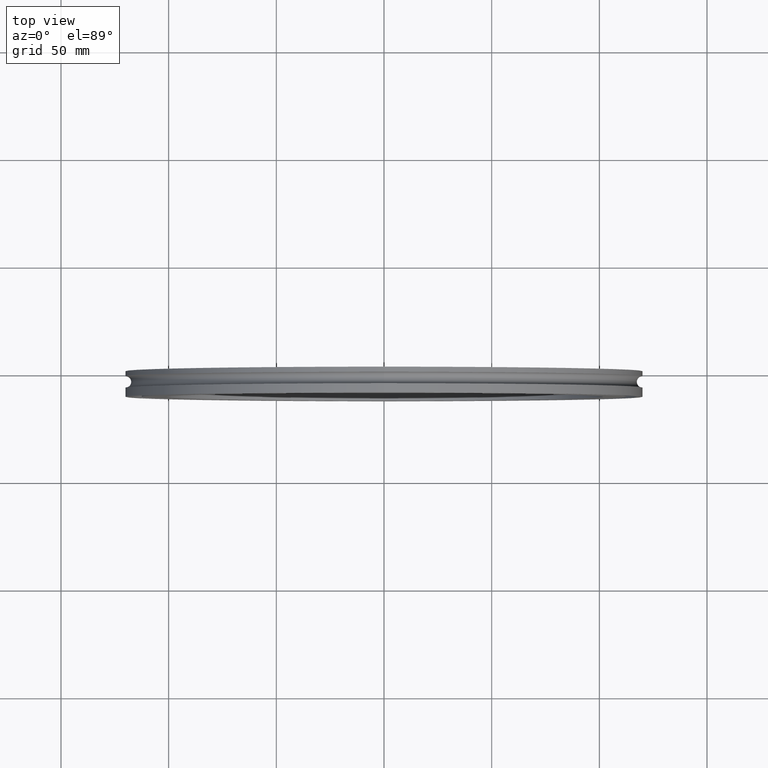
[diagram: clean part render]
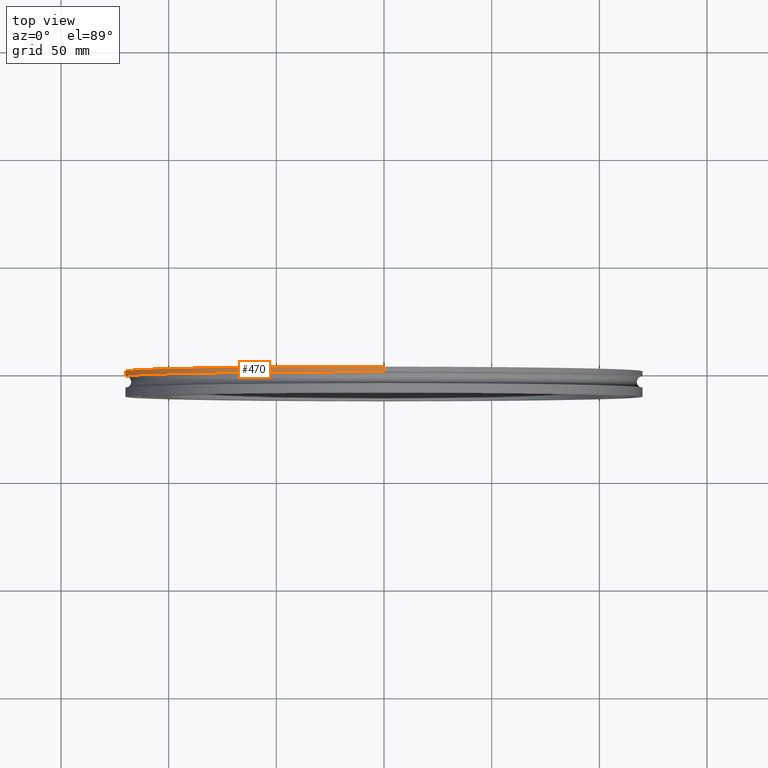
[diagram: same view with one face highlighted and labeled with its STEP entity id]
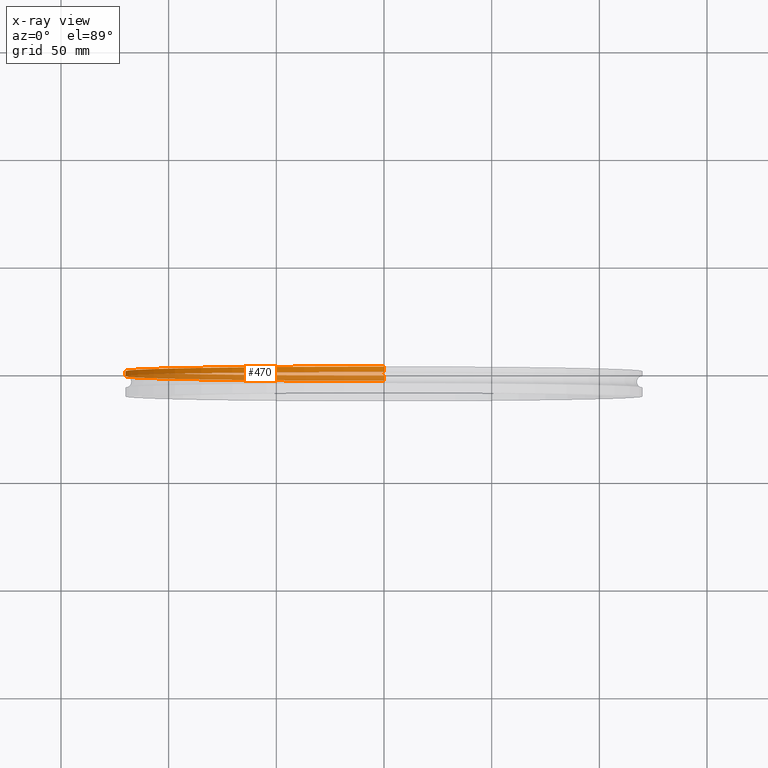
[diagram: x-ray of the same camera — body ghosted, the highlighted face saturated]
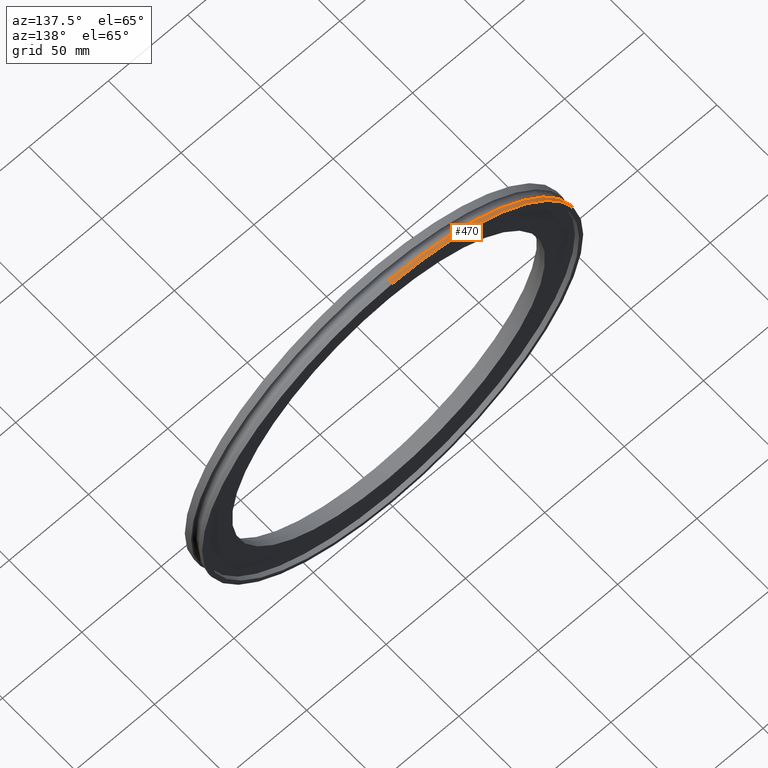
[diagram: same view with one face highlighted and labeled with its STEP entity id]
A machine part, top view. The second image highlights one B-rep face of the part: STEP entity #470.
The next image is the same camera in x-ray: the body ghosted, the highlighted face saturated — about 48% of this face is hidden behind the body in this view.
A second angle (auxiliary view) of the same face is appended — the face is thin or edge-on in the first view.
In plain terms, the highlighted cylindrical surface (partial cylindrical patch) has radius 120.015 mm, axis along (-0, 1, -0).
Its self-contained STEP definition (entity closure, byte-faithful):
#2 = DIRECTION ( 'NONE',  ( -0.000000000000000000, 1.000000000000000000, -0.000000000000000000 ) ) ;
#6 = AXIS2_PLACEMENT_3D ( 'NONE', #371, #2, #582 ) ;
#9 = VERTEX_POINT ( 'NONE', #177 ) ;
#19 = DIRECTION ( 'NONE',  ( -0.000000000000000000, 1.000000000000000000, -0.000000000000000000 ) ) ;
#36 = ORIENTED_EDGE ( 'NONE', *, *, #306, .F. ) ;
#53 = CIRCLE ( 'NONE', #461, 4.724999999999998757 ) ;
#73 = CARTESIAN_POINT ( 'NONE',  ( 0.000000000000000000, 0.000000000000000000, 0.000000000000000000 ) ) ;
#81 = DIRECTION ( 'NONE',  ( -0.000000000000000000, 1.000000000000000000, -0.000000000000000000 ) ) ;
#111 = ORIENTED_EDGE ( 'NONE', *, *, #187, .T. ) ;
#116 = ORIENTED_EDGE ( 'NONE', *, *, #288, .F. ) ;
#132 = FACE_OUTER_BOUND ( 'NONE', #683, .T. ) ;
#177 = CARTESIAN_POINT ( 'NONE',  ( 0.000000000000000000, 0.000000000000000000, 4.724999999999999645 ) ) ;
#187 = EDGE_CURVE ( 'NONE', #531, #650, #53, .T. ) ;
#210 = LINE ( 'NONE', #498, #554 ) ;
#247 = CARTESIAN_POINT ( 'NONE',  ( 0.000000000000000000, -0.09400000000000001410, 4.724999999999999645 ) ) ;
#253 = CARTESIAN_POINT ( 'NONE',  ( 0.000000000000000000, -0.09400000000000001410, 0.000000000000000000 ) ) ;
#288 = EDGE_CURVE ( 'NONE', #531, #495, #210, .T. ) ;
#293 = CARTESIAN_POINT ( 'NONE',  ( 5.786456125971243047E-16, 0.000000000000000000, -4.724999999999999645 ) ) ;
#306 = EDGE_CURVE ( 'NONE', #495, #9, #462, .T. ) ;
#334 = CARTESIAN_POINT ( 'NONE',  ( 5.786456125971243047E-16, -0.09400000000000001410, -4.724999999999999645 ) ) ;
#371 = CARTESIAN_POINT ( 'NONE',  ( 0.000000000000000000, 0.000000000000000000, 0.000000000000000000 ) ) ;
#392 = CYLINDRICAL_SURFACE ( 'NONE', #593, 4.724999999999999645 ) ;
#403 = DIRECTION ( 'NONE',  ( -0.000000000000000000, 1.000000000000000000, -0.000000000000000000 ) ) ;
#461 = AXIS2_PLACEMENT_3D ( 'NONE', #253, #403, #516 ) ;
#462 = CIRCLE ( 'NONE', #6, 4.724999999999999645 ) ;
#470 = ADVANCED_FACE ( 'NONE', ( #132 ), #392, .T. ) ;
#495 = VERTEX_POINT ( 'NONE', #293 ) ;
#498 = CARTESIAN_POINT ( 'NONE',  ( 5.786456125971243047E-16, 0.000000000000000000, -4.724999999999999645 ) ) ;
#516 = DIRECTION ( 'NONE',  ( 0.000000000000000000, 0.000000000000000000, 1.000000000000000000 ) ) ;
#524 = VECTOR ( 'NONE', #81, 39.37007874015748143 ) ;
#531 = VERTEX_POINT ( 'NONE', #334 ) ;
#536 = ORIENTED_EDGE ( 'NONE', *, *, #572, .T. ) ;
#553 = DIRECTION ( 'NONE',  ( 0.000000000000000000, 0.000000000000000000, 1.000000000000000000 ) ) ;
#554 = VECTOR ( 'NONE', #19, 39.37007874015748143 ) ;
#557 = LINE ( 'NONE', #674, #524 ) ;
#572 = EDGE_CURVE ( 'NONE', #650, #9, #557, .T. ) ;
#582 = DIRECTION ( 'NONE',  ( 0.000000000000000000, 0.000000000000000000, 1.000000000000000000 ) ) ;
#593 = AXIS2_PLACEMENT_3D ( 'NONE', #73, #666, #553 ) ;
#650 = VERTEX_POINT ( 'NONE', #247 ) ;
#666 = DIRECTION ( 'NONE',  ( -0.000000000000000000, 1.000000000000000000, -0.000000000000000000 ) ) ;
#674 = CARTESIAN_POINT ( 'NONE',  ( 0.000000000000000000, 0.000000000000000000, 4.724999999999999645 ) ) ;
#683 = EDGE_LOOP ( 'NONE', ( #116, #111, #536, #36 ) ) ;